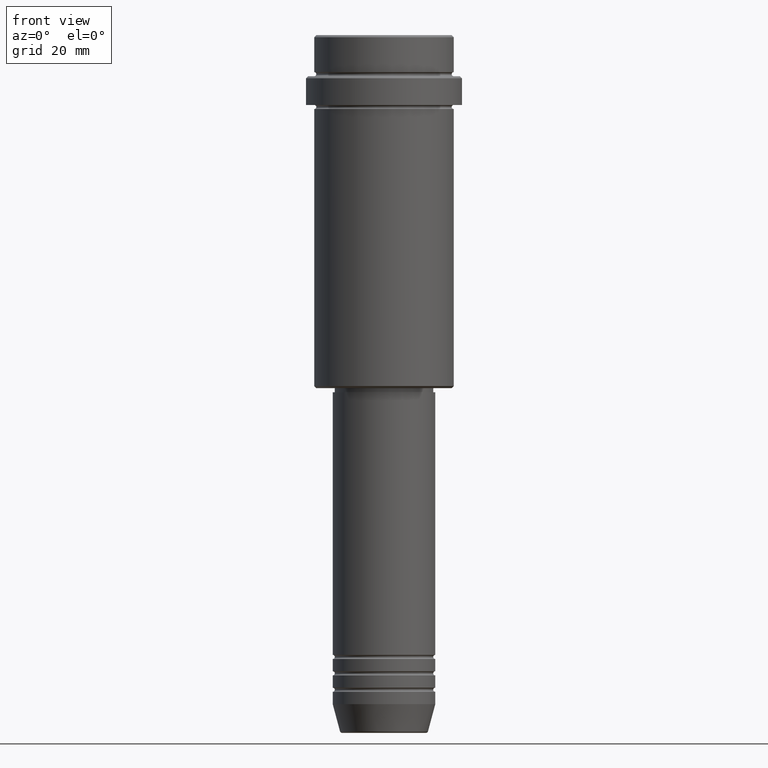
[diagram: clean part render]
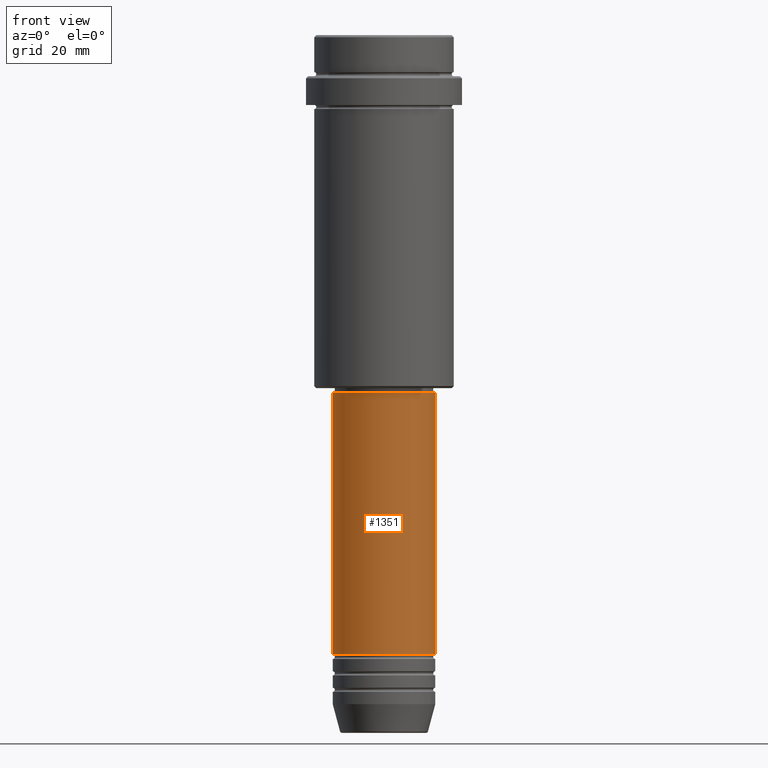
[diagram: same view with one face highlighted and labeled with its STEP entity id]
A machine part, front view. The second image highlights one B-rep face of the part: STEP entity #1351.
In plain terms, the highlighted cylindrical surface (partial cylindrical patch) has radius 12.5 mm, axis along (-0, -0, 1).
Its self-contained STEP definition (entity closure, byte-faithful):
#10 = CIRCLE ( 'NONE', #167, 12.50000000000000000 ) ;
#60 = VECTOR ( 'NONE', #292, 1000.000000000000000 ) ;
#72 = DIRECTION ( 'NONE',  ( 1.000000000000000000, 0.000000000000000000, 0.000000000000000000 ) ) ;
#85 = ORIENTED_EDGE ( 'NONE', *, *, #1204, .T. ) ;
#115 = CIRCLE ( 'NONE', #198, 12.50000000000000000 ) ;
#167 = AXIS2_PLACEMENT_3D ( 'NONE', #722, #816, #72 ) ;
#171 = CARTESIAN_POINT ( 'NONE',  ( -12.50000000000000000, 1.530808498934191521E-15, -86.99999999999995737 ) ) ;
#190 = LINE ( 'NONE', #618, #1096 ) ;
#198 = AXIS2_PLACEMENT_3D ( 'NONE', #1356, #588, #1230 ) ;
#251 = CARTESIAN_POINT ( 'NONE',  ( -12.50000000000000000, 1.530808498934191521E-15, -150.9999999999998863 ) ) ;
#292 = DIRECTION ( 'NONE',  ( -0.000000000000000000, -0.000000000000000000, 1.000000000000000000 ) ) ;
#320 = EDGE_LOOP ( 'NONE', ( #468, #954, #85, #1101 ) ) ;
#359 = CARTESIAN_POINT ( 'NONE',  ( 12.50000000000000000, 0.000000000000000000, -86.99999999999995737 ) ) ;
#397 = CARTESIAN_POINT ( 'NONE',  ( 12.50000000000000000, 0.000000000000000000, 0.000000000000000000 ) ) ;
#408 = DIRECTION ( 'NONE',  ( -0.000000000000000000, -0.000000000000000000, 1.000000000000000000 ) ) ;
#468 = ORIENTED_EDGE ( 'NONE', *, *, #881, .F. ) ;
#518 = AXIS2_PLACEMENT_3D ( 'NONE', #857, #408, #1298 ) ;
#588 = DIRECTION ( 'NONE',  ( -0.000000000000000000, -0.000000000000000000, 1.000000000000000000 ) ) ;
#617 = LINE ( 'NONE', #397, #60 ) ;
#618 = CARTESIAN_POINT ( 'NONE',  ( -12.50000000000000000, 1.530808498934191521E-15, 0.000000000000000000 ) ) ;
#669 = VERTEX_POINT ( 'NONE', #845 ) ;
#722 = CARTESIAN_POINT ( 'NONE',  ( 0.000000000000000000, 0.000000000000000000, -86.99999999999995737 ) ) ;
#745 = FACE_OUTER_BOUND ( 'NONE', #320, .T. ) ;
#816 = DIRECTION ( 'NONE',  ( -0.000000000000000000, -0.000000000000000000, 1.000000000000000000 ) ) ;
#845 = CARTESIAN_POINT ( 'NONE',  ( 12.50000000000000000, 0.000000000000000000, -150.9999999999998863 ) ) ;
#857 = CARTESIAN_POINT ( 'NONE',  ( 0.000000000000000000, 0.000000000000000000, 0.000000000000000000 ) ) ;
#858 = DIRECTION ( 'NONE',  ( -0.000000000000000000, -0.000000000000000000, 1.000000000000000000 ) ) ;
#881 = EDGE_CURVE ( 'NONE', #1117, #1284, #190, .T. ) ;
#954 = ORIENTED_EDGE ( 'NONE', *, *, #1149, .T. ) ;
#1096 = VECTOR ( 'NONE', #858, 1000.000000000000000 ) ;
#1101 = ORIENTED_EDGE ( 'NONE', *, *, #1302, .F. ) ;
#1117 = VERTEX_POINT ( 'NONE', #251 ) ;
#1149 = EDGE_CURVE ( 'NONE', #1117, #669, #115, .T. ) ;
#1161 = VERTEX_POINT ( 'NONE', #359 ) ;
#1204 = EDGE_CURVE ( 'NONE', #669, #1161, #617, .T. ) ;
#1230 = DIRECTION ( 'NONE',  ( 1.000000000000000000, 0.000000000000000000, 0.000000000000000000 ) ) ;
#1284 = VERTEX_POINT ( 'NONE', #171 ) ;
#1298 = DIRECTION ( 'NONE',  ( 1.000000000000000000, 0.000000000000000000, 0.000000000000000000 ) ) ;
#1302 = EDGE_CURVE ( 'NONE', #1284, #1161, #10, .T. ) ;
#1351 = ADVANCED_FACE ( 'NONE', ( #745 ), #1412, .T. ) ;
#1356 = CARTESIAN_POINT ( 'NONE',  ( 0.000000000000000000, 0.000000000000000000, -150.9999999999998863 ) ) ;
#1412 = CYLINDRICAL_SURFACE ( 'NONE', #518, 12.50000000000000000 ) ;